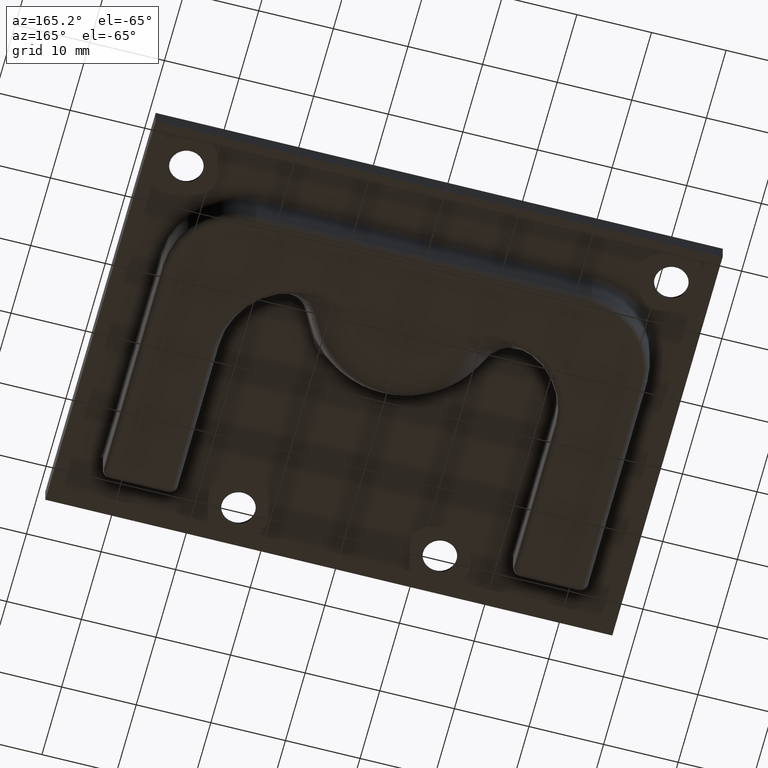
[diagram: clean part render]
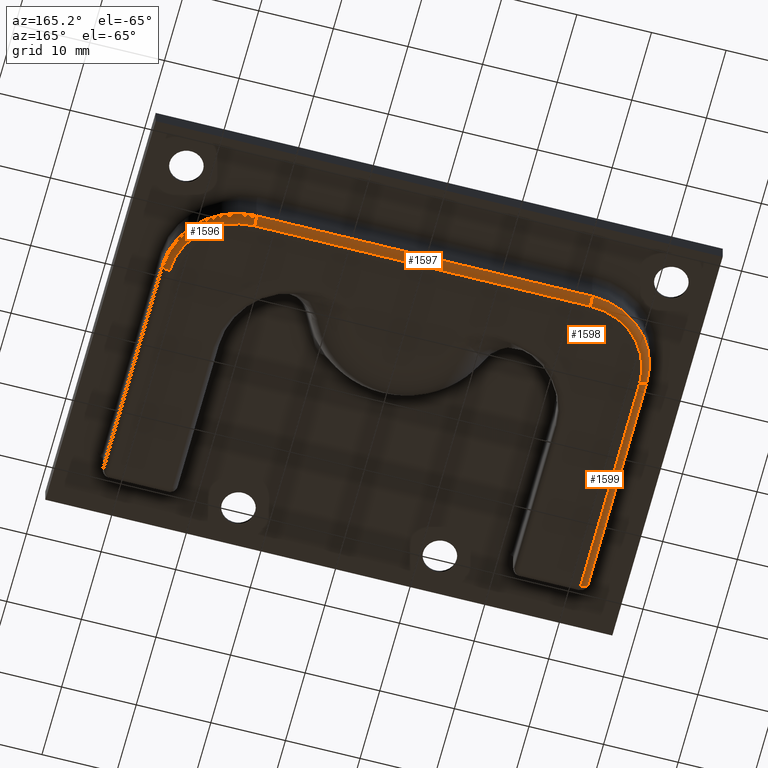
[diagram: same view with one multi-face feature highlighted, each face labeled with its STEP entity id]
A machine part, auxiliary view. The highlighted faces form ONE feature: a constant-radius fillet chain: 4 tangent blend faces with common blend radius 1 mm. The faces share edges in the B-rep.
Their STEP definitions:
[1] entity #1596 (Torus):
#302=TOROIDAL_SURFACE('',#1751,9.,1.);
#418=FACE_OUTER_BOUND('',#535,.T.);
#535=EDGE_LOOP('',(#1225,#1226,#1227,#1228));
#664=CIRCLE('',#1750,1.);
#665=CIRCLE('',#1752,1.);
#666=CIRCLE('',#1753,10.);
#667=CIRCLE('',#1754,9.);
#776=VERTEX_POINT('',#2940);
#777=VERTEX_POINT('',#2941);
#778=VERTEX_POINT('',#2946);
#779=VERTEX_POINT('',#2947);
#948=EDGE_CURVE('',#776,#777,#664,.T.);
#951=EDGE_CURVE('',#778,#779,#665,.T.);
#952=EDGE_CURVE('',#779,#777,#666,.T.);
#953=EDGE_CURVE('',#776,#778,#667,.T.);
#1225=ORIENTED_EDGE('',*,*,#951,.T.);
#1226=ORIENTED_EDGE('',*,*,#952,.T.);
#1227=ORIENTED_EDGE('',*,*,#948,.F.);
#1228=ORIENTED_EDGE('',*,*,#953,.T.);
#1596=ADVANCED_FACE('',(#418),#302,.T.);
#1750=AXIS2_PLACEMENT_3D('',#2942,#2052,#2053);
#1751=AXIS2_PLACEMENT_3D('',#2945,#2056,#2057);
#1752=AXIS2_PLACEMENT_3D('',#2948,#2058,#2059);
#1753=AXIS2_PLACEMENT_3D('',#2949,#2060,#2061);
#1754=AXIS2_PLACEMENT_3D('',#2950,#2062,#2063);
#2052=DIRECTION('center_axis',(0.,-1.,0.));
#2053=DIRECTION('ref_axis',(0.,0.,-1.));
#2056=DIRECTION('center_axis',(0.,0.,1.));
#2057=DIRECTION('ref_axis',(1.,0.,0.));
#2058=DIRECTION('center_axis',(1.,0.,0.));
#2059=DIRECTION('ref_axis',(0.,0.,-1.));
#2060=DIRECTION('center_axis',(0.,0.,-1.));
#2061=DIRECTION('ref_axis',(0.707106781186547,0.707106781186548,0.));
#2062=DIRECTION('center_axis',(0.,0.,1.));
#2063=DIRECTION('ref_axis',(0.707106781186547,0.707106781186548,0.));
#2940=CARTESIAN_POINT('',(31.5,10.5,-6.));
#2941=CARTESIAN_POINT('',(32.5,10.5,-5.));
#2942=CARTESIAN_POINT('Origin',(31.5,10.5,-5.));
#2945=CARTESIAN_POINT('Origin',(22.5,10.5,-5.));
#2946=CARTESIAN_POINT('',(22.5,19.5,-6.));
#2947=CARTESIAN_POINT('',(22.5,20.5,-5.));
#2948=CARTESIAN_POINT('Origin',(22.5,19.5,-5.));
#2949=CARTESIAN_POINT('Origin',(22.5,10.5,-5.));
#2950=CARTESIAN_POINT('Origin',(22.5,10.5,-6.));
[2] entity #1597 (Cylinder):
#53=LINE('',#2955,#167);
#54=LINE('',#2956,#168);
#167=VECTOR('',#2068,45.);
#168=VECTOR('',#2069,45.);
#343=CYLINDRICAL_SURFACE('',#1755,1.);
#419=FACE_OUTER_BOUND('',#536,.T.);
#536=EDGE_LOOP('',(#1229,#1230,#1231,#1232));
#665=CIRCLE('',#1752,1.);
#668=CIRCLE('',#1756,1.);
#778=VERTEX_POINT('',#2946);
#779=VERTEX_POINT('',#2947);
#780=VERTEX_POINT('',#2952);
#781=VERTEX_POINT('',#2953);
#951=EDGE_CURVE('',#778,#779,#665,.T.);
#954=EDGE_CURVE('',#780,#781,#668,.T.);
#955=EDGE_CURVE('',#781,#779,#53,.T.);
#956=EDGE_CURVE('',#778,#780,#54,.T.);
#1229=ORIENTED_EDGE('',*,*,#954,.T.);
#1230=ORIENTED_EDGE('',*,*,#955,.T.);
#1231=ORIENTED_EDGE('',*,*,#951,.F.);
#1232=ORIENTED_EDGE('',*,*,#956,.T.);
#1597=ADVANCED_FACE('',(#419),#343,.T.);
#1752=AXIS2_PLACEMENT_3D('',#2948,#2058,#2059);
#1755=AXIS2_PLACEMENT_3D('',#2951,#2064,#2065);
#1756=AXIS2_PLACEMENT_3D('',#2954,#2066,#2067);
#2058=DIRECTION('center_axis',(1.,0.,0.));
#2059=DIRECTION('ref_axis',(0.,0.,-1.));
#2064=DIRECTION('center_axis',(-1.,-9.86864910777917E-17,0.));
#2065=DIRECTION('ref_axis',(0.,0.707106781186548,-0.707106781186547));
#2066=DIRECTION('center_axis',(1.,0.,0.));
#2067=DIRECTION('ref_axis',(0.,0.,-1.));
#2068=DIRECTION('',(1.,9.86864910777917E-17,0.));
#2069=DIRECTION('',(-1.,-9.86864910777917E-17,0.));
#2946=CARTESIAN_POINT('',(22.5,19.5,-6.));
#2947=CARTESIAN_POINT('',(22.5,20.5,-5.));
#2948=CARTESIAN_POINT('Origin',(22.5,19.5,-5.));
#2951=CARTESIAN_POINT('Origin',(-11.25,19.5,-5.));
#2952=CARTESIAN_POINT('',(-22.5,19.5,-6.));
#2953=CARTESIAN_POINT('',(-22.5,20.5,-5.));
#2954=CARTESIAN_POINT('Origin',(-22.5,19.5,-5.));
#2955=CARTESIAN_POINT('',(-11.25,20.5,-5.));
#2956=CARTESIAN_POINT('',(-11.25,19.5,-6.));
[3] entity #1598 (Torus):
#303=TOROIDAL_SURFACE('',#1757,9.,1.);
#420=FACE_OUTER_BOUND('',#537,.T.);
#537=EDGE_LOOP('',(#1233,#1234,#1235,#1236));
#668=CIRCLE('',#1756,1.);
#669=CIRCLE('',#1758,1.);
#670=CIRCLE('',#1759,10.);
#671=CIRCLE('',#1760,9.);
#780=VERTEX_POINT('',#2952);
#781=VERTEX_POINT('',#2953);
#782=VERTEX_POINT('',#2958);
#783=VERTEX_POINT('',#2959);
#954=EDGE_CURVE('',#780,#781,#668,.T.);
#957=EDGE_CURVE('',#782,#783,#669,.T.);
#958=EDGE_CURVE('',#783,#781,#670,.T.);
#959=EDGE_CURVE('',#780,#782,#671,.T.);
#1233=ORIENTED_EDGE('',*,*,#957,.T.);
#1234=ORIENTED_EDGE('',*,*,#958,.T.);
#1235=ORIENTED_EDGE('',*,*,#954,.F.);
#1236=ORIENTED_EDGE('',*,*,#959,.T.);
#1598=ADVANCED_FACE('',(#420),#303,.T.);
#1756=AXIS2_PLACEMENT_3D('',#2954,#2066,#2067);
#1757=AXIS2_PLACEMENT_3D('',#2957,#2070,#2071);
#1758=AXIS2_PLACEMENT_3D('',#2960,#2072,#2073);
#1759=AXIS2_PLACEMENT_3D('',#2961,#2074,#2075);
#1760=AXIS2_PLACEMENT_3D('',#2962,#2076,#2077);
#2066=DIRECTION('center_axis',(1.,0.,0.));
#2067=DIRECTION('ref_axis',(0.,0.,-1.));
#2070=DIRECTION('center_axis',(0.,0.,1.));
#2071=DIRECTION('ref_axis',(1.,0.,0.));
#2072=DIRECTION('center_axis',(2.22044604925031E-15,1.,0.));
#2073=DIRECTION('ref_axis',(0.,0.,-1.));
#2074=DIRECTION('center_axis',(0.,0.,-1.));
#2075=DIRECTION('ref_axis',(-0.707106781186548,0.707106781186547,0.));
#2076=DIRECTION('center_axis',(0.,0.,1.));
#2077=DIRECTION('ref_axis',(-0.707106781186548,0.707106781186547,0.));
#2952=CARTESIAN_POINT('',(-22.5,19.5,-6.));
#2953=CARTESIAN_POINT('',(-22.5,20.5,-5.));
#2954=CARTESIAN_POINT('Origin',(-22.5,19.5,-5.));
#2957=CARTESIAN_POINT('Origin',(-22.5,10.5,-5.));
#2958=CARTESIAN_POINT('',(-31.5,10.5,-6.));
#2959=CARTESIAN_POINT('',(-32.5,10.5,-5.));
#2960=CARTESIAN_POINT('Origin',(-31.5,10.5,-5.));
#2961=CARTESIAN_POINT('Origin',(-22.5,10.5,-5.));
#2962=CARTESIAN_POINT('Origin',(-22.5,10.5,-6.));
[4] entity #1599 (Cylinder):
#55=LINE('',#2964,#169);
#56=LINE('',#2965,#170);
#169=VECTOR('',#2080,30.);
#170=VECTOR('',#2081,30.);
#344=CYLINDRICAL_SURFACE('',#1761,1.);
#421=FACE_OUTER_BOUND('',#538,.T.);
#538=EDGE_LOOP('',(#1237,#1238,#1239,#1240));
#649=CIRCLE('',#1725,1.);
#669=CIRCLE('',#1758,1.);
#763=VERTEX_POINT('',#2892);
#764=VERTEX_POINT('',#2893);
#782=VERTEX_POINT('',#2958);
#783=VERTEX_POINT('',#2959);
#923=EDGE_CURVE('',#763,#764,#649,.F.);
#957=EDGE_CURVE('',#782,#783,#669,.T.);
#960=EDGE_CURVE('',#764,#783,#55,.T.);
#961=EDGE_CURVE('',#782,#763,#56,.T.);
#1237=ORIENTED_EDGE('',*,*,#923,.T.);
#1238=ORIENTED_EDGE('',*,*,#960,.T.);
#1239=ORIENTED_EDGE('',*,*,#957,.F.);
#1240=ORIENTED_EDGE('',*,*,#961,.T.);
#1599=ADVANCED_FACE('',(#421),#344,.T.);
#1725=AXIS2_PLACEMENT_3D('',#2894,#1992,#1993);
#1758=AXIS2_PLACEMENT_3D('',#2960,#2072,#2073);
#1761=AXIS2_PLACEMENT_3D('',#2963,#2078,#2079);
#1992=DIRECTION('center_axis',(0.,-1.,0.));
#1993=DIRECTION('ref_axis',(0.,0.,-1.));
#2072=DIRECTION('center_axis',(2.22044604925031E-15,1.,0.));
#2073=DIRECTION('ref_axis',(0.,0.,-1.));
#2078=DIRECTION('center_axis',(0.,-1.,0.));
#2079=DIRECTION('ref_axis',(-0.70710678118655,0.,-0.707106781186545));
#2080=DIRECTION('',(0.,1.,0.));
#2081=DIRECTION('',(0.,-1.,0.));
#2892=CARTESIAN_POINT('',(-31.5,-19.5,-6.));
#2893=CARTESIAN_POINT('',(-32.5,-19.5,-5.));
#2894=CARTESIAN_POINT('Origin',(-31.5,-19.5,-5.));
#2958=CARTESIAN_POINT('',(-31.5,10.5,-6.));
#2959=CARTESIAN_POINT('',(-32.5,10.5,-5.));
#2960=CARTESIAN_POINT('Origin',(-31.5,10.5,-5.));
#2963=CARTESIAN_POINT('Origin',(-31.5,-10.25,-5.));
#2964=CARTESIAN_POINT('',(-32.5,-10.25,-5.));
#2965=CARTESIAN_POINT('',(-31.5,-10.25,-6.));